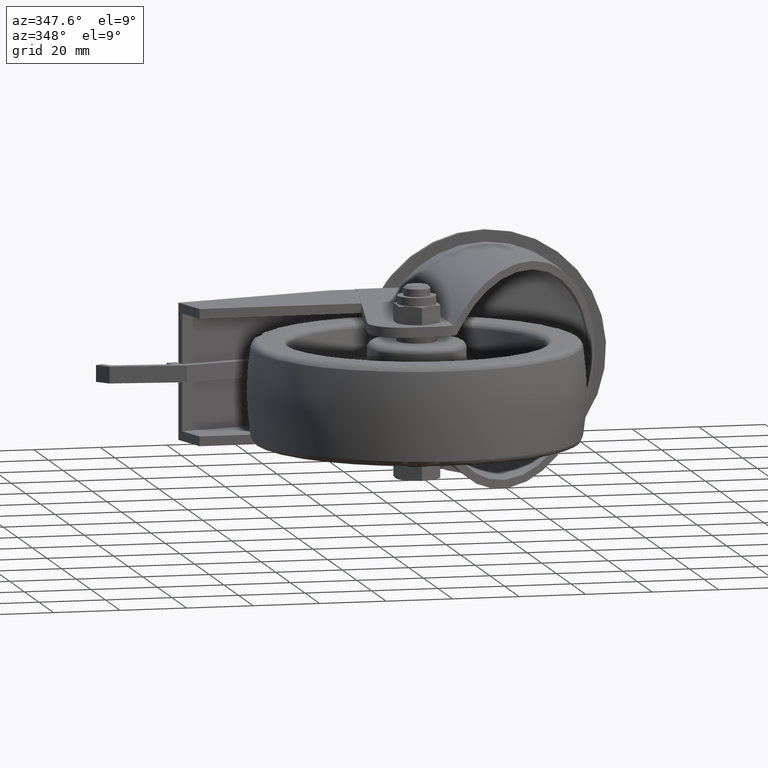
[diagram: clean part render]
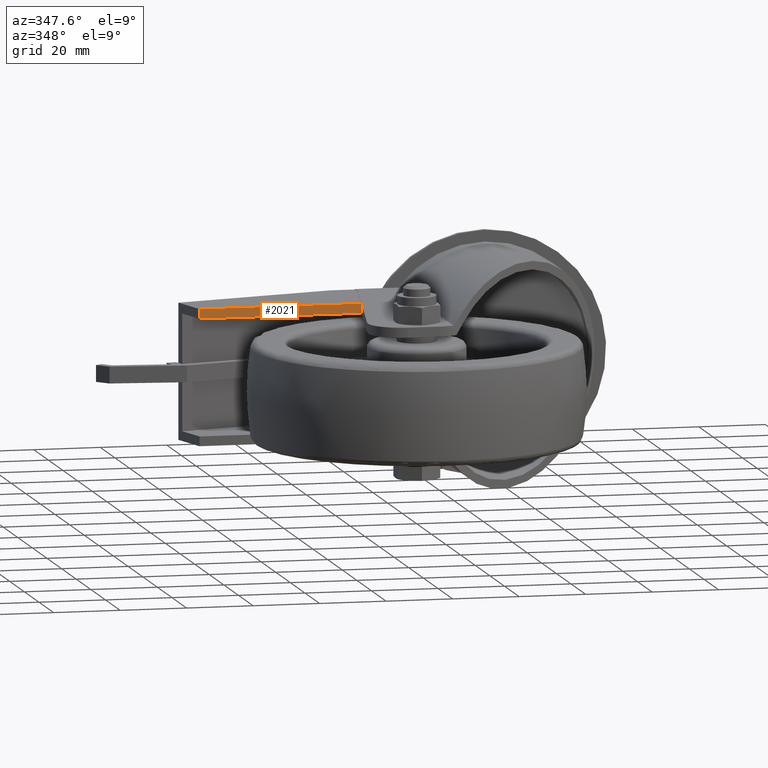
[diagram: same view with one face highlighted and labeled with its STEP entity id]
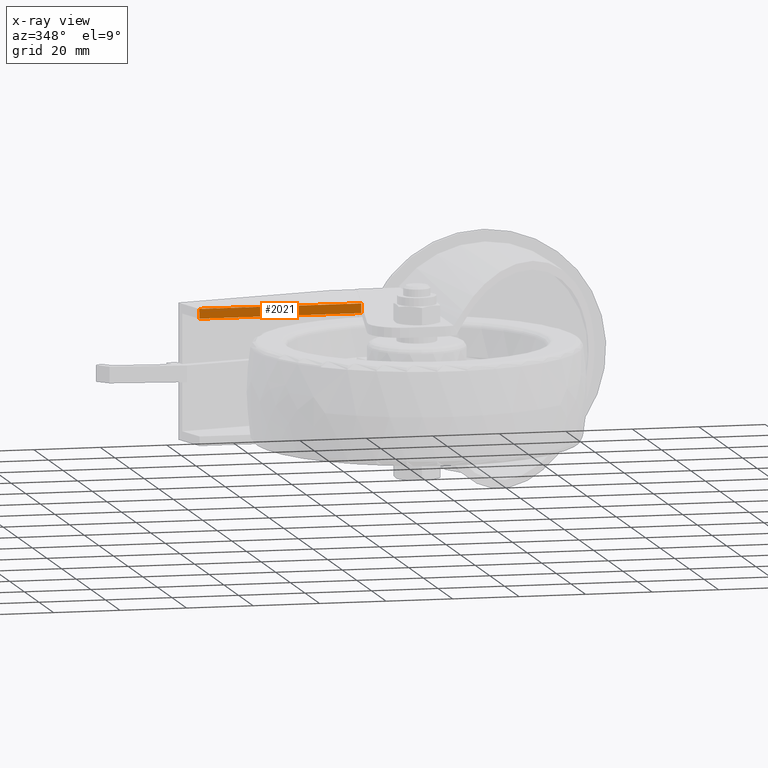
[diagram: x-ray of the same camera — body ghosted, the highlighted face saturated]
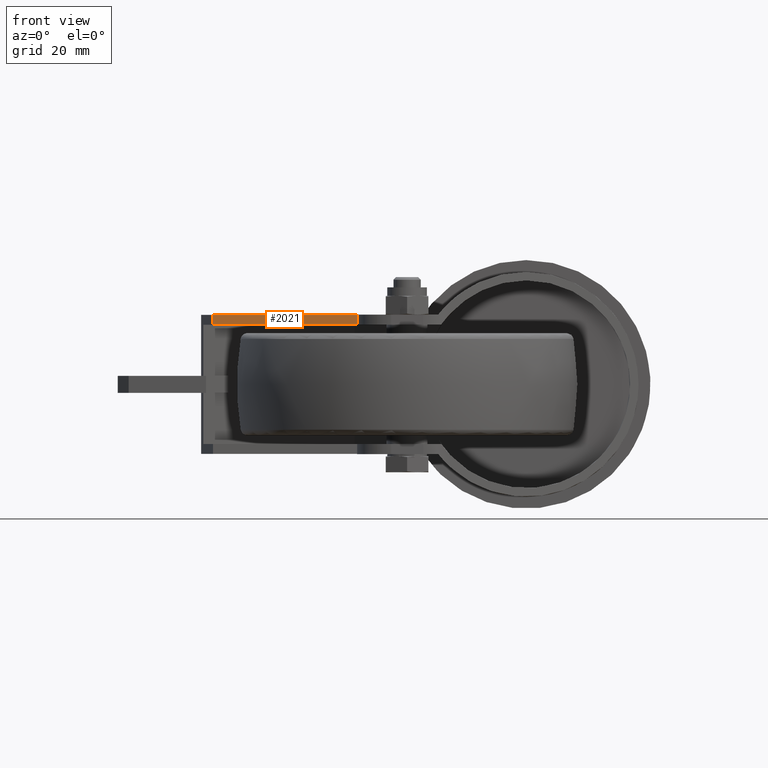
[diagram: same view with one face highlighted and labeled with its STEP entity id]
A machine part, auxiliary view. The second image highlights one B-rep face of the part: STEP entity #2021.
The next image is the same camera in x-ray: the body ghosted, the highlighted face saturated — about 0% of this face is hidden behind the body in this view.
A second angle (front view) of the same face is appended — the face is thin or edge-on in the first view.
In plain terms, the highlighted planar face has unit normal (0, 1, 0).
Its self-contained STEP definition (entity closure, byte-faithful):
#194=PLANE('',#2295);
#273=FACE_OUTER_BOUND('',#411,.T.);
#411=EDGE_LOOP('',(#1560,#1561,#1562,#1563));
#638=LINE('',#3128,#771);
#651=LINE('',#3157,#784);
#694=LINE('',#3336,#827);
#696=LINE('',#3339,#829);
#771=VECTOR('',#2497,1000.);
#784=VECTOR('',#2518,1000.);
#827=VECTOR('',#2679,1000.);
#829=VECTOR('',#2683,1000.);
#904=VERTEX_POINT('',#3124);
#906=VERTEX_POINT('',#3127);
#918=VERTEX_POINT('',#3156);
#967=VERTEX_POINT('',#3335);
#1091=EDGE_CURVE('',#904,#906,#638,.T.);
#1105=EDGE_CURVE('',#918,#906,#651,.T.);
#1183=EDGE_CURVE('',#967,#918,#694,.T.);
#1185=EDGE_CURVE('',#967,#904,#696,.T.);
#1560=ORIENTED_EDGE('',*,*,#1183,.T.);
#1561=ORIENTED_EDGE('',*,*,#1105,.T.);
#1562=ORIENTED_EDGE('',*,*,#1091,.F.);
#1563=ORIENTED_EDGE('',*,*,#1185,.F.);
#2021=ADVANCED_FACE('',(#273),#194,.F.);
#2295=AXIS2_PLACEMENT_3D('',#3338,#2681,#2682);
#2497=DIRECTION('',(0.,0.,-1.));
#2518=DIRECTION('',(1.,0.,0.));
#2679=DIRECTION('',(0.,0.,-1.));
#2681=DIRECTION('center_axis',(0.,1.,0.));
#2682=DIRECTION('ref_axis',(0.,0.,1.));
#2683=DIRECTION('',(1.,0.,0.));
#3124=CARTESIAN_POINT('',(-8.34736669791893,38.,20.4));
#3127=CARTESIAN_POINT('',(-8.34736669791893,38.,17.5));
#3128=CARTESIAN_POINT('',(-8.34736669791893,38.,100.));
#3156=CARTESIAN_POINT('',(-57.,38.,17.5));
#3157=CARTESIAN_POINT('',(-57.,38.,17.5));
#3335=CARTESIAN_POINT('',(-57.,38.,20.4));
#3336=CARTESIAN_POINT('',(-57.,38.,20.4));
#3338=CARTESIAN_POINT('Origin',(-57.,38.,20.4));
#3339=CARTESIAN_POINT('',(-57.,38.,20.4));